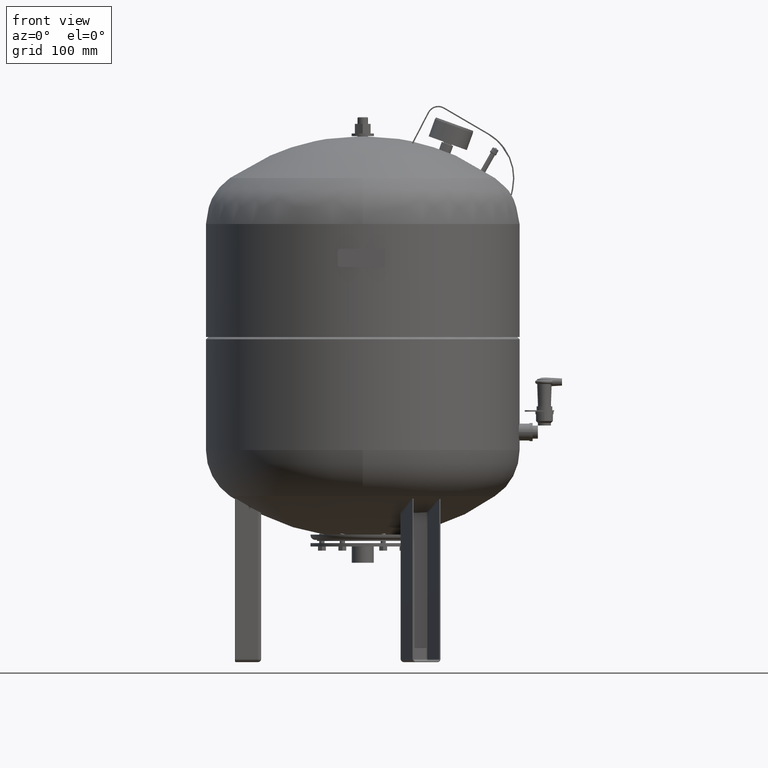
[diagram: clean part render]
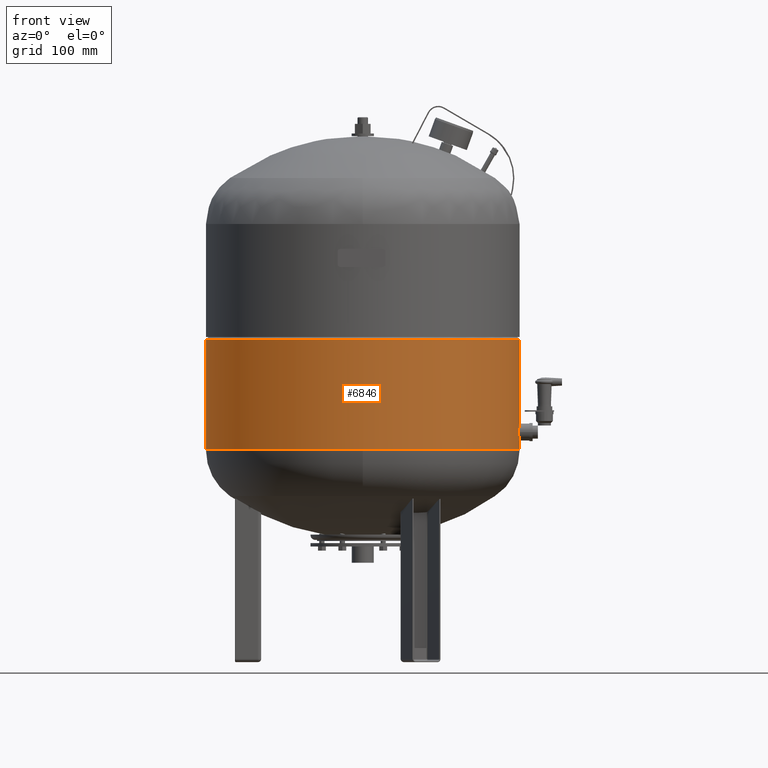
[diagram: same view with one face highlighted and labeled with its STEP entity id]
A machine part, front view. The second image highlights one B-rep face of the part: STEP entity #6846.
In plain terms, the highlighted cylindrical surface (partial cylindrical patch) has radius 240 mm, axis along (0, 0, 1).
Its self-contained STEP definition (entity closure, byte-faithful):
#6780=CARTESIAN_POINT('',(239.999999999999970,0.0,494.0));
#6781=VERTEX_POINT('',#6780);
#6797=CARTESIAN_POINT('',(-240.0,-2.939055E-014,494.0));
#6798=VERTEX_POINT('',#6797);
#6805=CARTESIAN_POINT('',(-3.385964E-016,0.0,494.0));
#6806=DIRECTION('',(0.0,0.0,1.0));
#6807=DIRECTION('',(1.0,0.0,0.0));
#6808=AXIS2_PLACEMENT_3D('',#6805,#6806,#6807);
#6809=CIRCLE('',#6808,239.999999999999970);
#6810=EDGE_CURVE('',#6798,#6781,#6809,.T.);
#6815=CARTESIAN_POINT('',(-1.649448E-015,0.0,480.450000000000050));
#6816=DIRECTION('',(9.674182E-017,0.0,1.0));
#6817=DIRECTION('',(1.0,0.0,0.0));
#6818=AXIS2_PLACEMENT_3D('',#6815,#6816,#6817);
#6819=CYLINDRICAL_SURFACE('',#6818,240.0);
#6820=CARTESIAN_POINT('',(239.999999999999970,0.0,325.0));
#6821=VERTEX_POINT('',#6820);
#6822=CARTESIAN_POINT('',(239.999999999999970,0.0,494.0));
#6823=DIRECTION('',(0.0,0.0,-1.0));
#6824=VECTOR('',#6823,169.0);
#6825=LINE('',#6822,#6824);
#6826=EDGE_CURVE('',#6781,#6821,#6825,.T.);
#6827=ORIENTED_EDGE('',*,*,#6826,.F.);
#6828=ORIENTED_EDGE('',*,*,#6810,.F.);
#6829=CARTESIAN_POINT('',(-240.000000000000030,-2.939055E-014,325.0));
#6830=VERTEX_POINT('',#6829);
#6831=CARTESIAN_POINT('',(-240.0,-2.939055E-014,494.0));
#6832=DIRECTION('',(0.0,0.0,-1.0));
#6833=VECTOR('',#6832,169.0);
#6834=LINE('',#6831,#6833);
#6835=EDGE_CURVE('',#6798,#6830,#6834,.T.);
#6836=ORIENTED_EDGE('',*,*,#6835,.T.);
#6837=CARTESIAN_POINT('',(-1.668796E-014,0.0,325.0));
#6838=DIRECTION('',(0.0,0.0,1.0));
#6839=DIRECTION('',(1.0,0.0,0.0));
#6840=AXIS2_PLACEMENT_3D('',#6837,#6838,#6839);
#6841=CIRCLE('',#6840,239.999999999999970);
#6842=EDGE_CURVE('',#6830,#6821,#6841,.T.);
#6843=ORIENTED_EDGE('',*,*,#6842,.T.);
#6844=EDGE_LOOP('',(#6827,#6828,#6836,#6843));
#6845=FACE_OUTER_BOUND('',#6844,.T.);
#6846=ADVANCED_FACE('',(#6845),#6819,.T.);